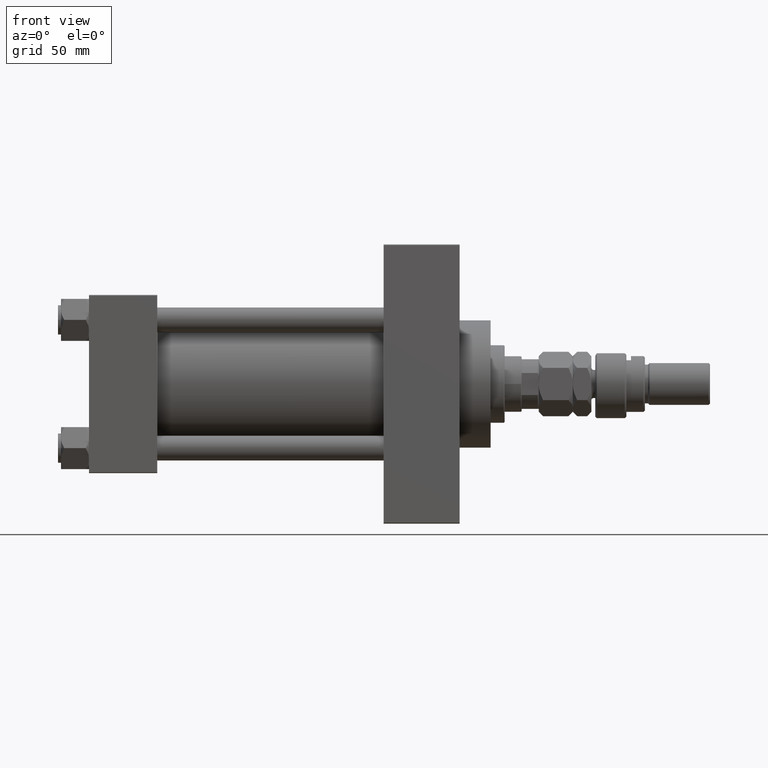
[diagram: clean part render]
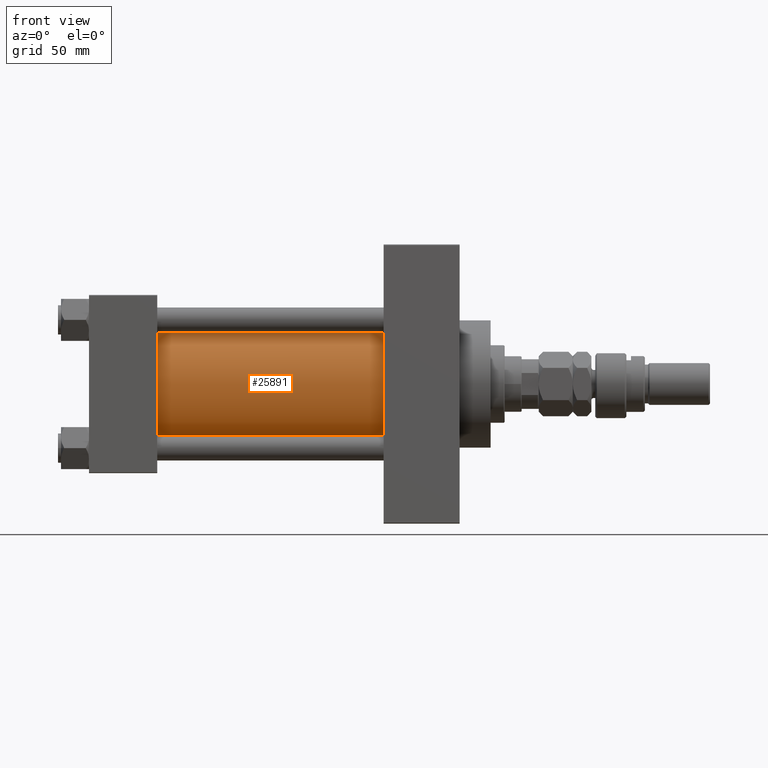
[diagram: same view with one face highlighted and labeled with its STEP entity id]
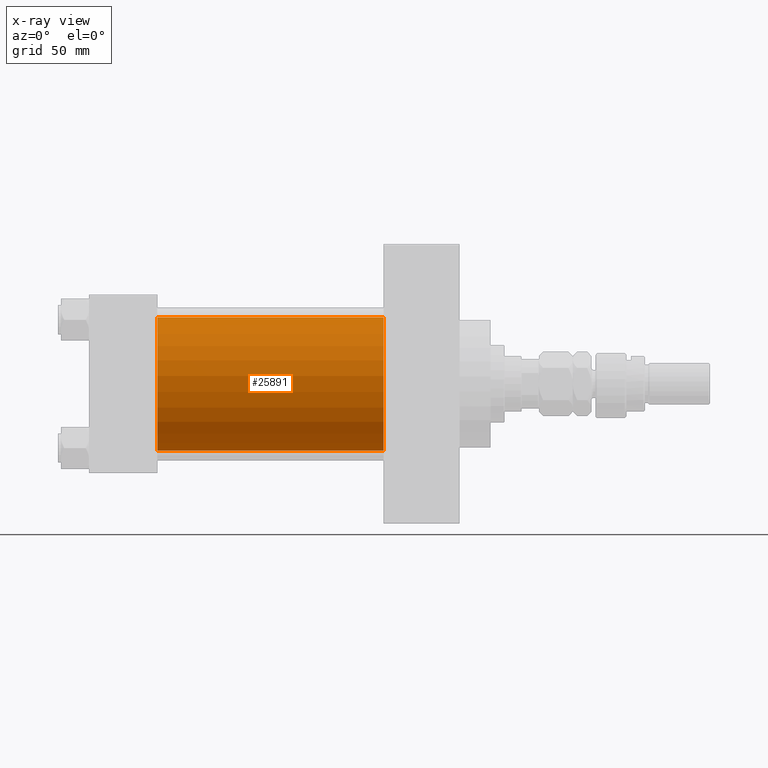
[diagram: x-ray of the same camera — body ghosted, the highlighted face saturated]
A machine part, front view. The second image highlights one B-rep face of the part: STEP entity #25891.
The next image is the same camera in x-ray: the body ghosted, the highlighted face saturated — about 0% of this face is hidden behind the body in this view.
In plain terms, the highlighted cylindrical surface (partial cylindrical patch) has radius 43 mm, axis along (-1, -0, -0).
Its self-contained STEP definition (entity closure, byte-faithful):
#440 = DIRECTION ( 'NONE',  ( 0.000000000000000000, 0.000000000000000000, 1.000000000000000000 ) ) ;
#903 = EDGE_CURVE ( 'NONE', #16494, #42764, #29219, .T. ) ;
#1172 = DIRECTION ( 'NONE',  ( 0.000000000000000000, 0.000000000000000000, -1.000000000000000000 ) ) ;
#1278 = EDGE_LOOP ( 'NONE', ( #36217, #23780, #50452, #5980 ) ) ;
#3443 = CYLINDRICAL_SURFACE ( 'NONE', #37871, 43.00000000000000000 ) ;
#4658 = VECTOR ( 'NONE', #21315, 1000.000000000000000 ) ;
#5041 = CARTESIAN_POINT ( 'NONE',  ( 43.99999999999998579, -2.602085213965210642E-15, 0.000000000000000000 ) ) ;
#5585 = EDGE_CURVE ( 'NONE', #25384, #11556, #49819, .T. ) ;
#5980 = ORIENTED_EDGE ( 'NONE', *, *, #903, .T. ) ;
#8731 = LINE ( 'NONE', #24424, #4658 ) ;
#11556 = VERTEX_POINT ( 'NONE', #37237 ) ;
#16009 = DIRECTION ( 'NONE',  ( 0.000000000000000000, 0.000000000000000000, 1.000000000000000000 ) ) ;
#16494 = VERTEX_POINT ( 'NONE', #28034 ) ;
#19463 = EDGE_CURVE ( 'NONE', #25384, #16494, #30318, .T. ) ;
#19703 = CARTESIAN_POINT ( 'NONE',  ( 190.0000000000000000, -2.602085213965210642E-15, 0.000000000000000000 ) ) ;
#21315 = DIRECTION ( 'NONE',  ( -1.000000000000000000, -0.000000000000000000, -0.000000000000000000 ) ) ;
#23780 = ORIENTED_EDGE ( 'NONE', *, *, #5585, .F. ) ;
#24424 = CARTESIAN_POINT ( 'NONE',  ( 190.0000000000000000, 2.663896022368408223E-15, -43.00000000000000000 ) ) ;
#25384 = VERTEX_POINT ( 'NONE', #42315 ) ;
#25891 = ADVANCED_FACE ( 'NONE', ( #35288 ), #3443, .T. ) ;
#26450 = CARTESIAN_POINT ( 'NONE',  ( 190.0000000000000000, -2.602085213965210642E-15, 43.00000000000000000 ) ) ;
#27738 = AXIS2_PLACEMENT_3D ( 'NONE', #19703, #28663, #1172 ) ;
#28034 = CARTESIAN_POINT ( 'NONE',  ( 43.99999999999998579, -2.602085213965210642E-15, 43.00000000000000000 ) ) ;
#28663 = DIRECTION ( 'NONE',  ( 1.000000000000000000, 0.000000000000000000, 0.000000000000000000 ) ) ;
#29219 = CIRCLE ( 'NONE', #46432, 43.00000000000000000 ) ;
#30318 = LINE ( 'NONE', #26450, #49490 ) ;
#31404 = CARTESIAN_POINT ( 'NONE',  ( 43.99999999999998579, 2.663896022368408223E-15, -43.00000000000000000 ) ) ;
#35288 = FACE_OUTER_BOUND ( 'NONE', #1278, .T. ) ;
#36217 = ORIENTED_EDGE ( 'NONE', *, *, #39796, .F. ) ;
#37237 = CARTESIAN_POINT ( 'NONE',  ( 190.0000000000000000, 2.663896022368408223E-15, -43.00000000000000000 ) ) ;
#37871 = AXIS2_PLACEMENT_3D ( 'NONE', #38374, #39128, #16009 ) ;
#38374 = CARTESIAN_POINT ( 'NONE',  ( 190.0000000000000000, -2.602085213965210642E-15, 0.000000000000000000 ) ) ;
#39128 = DIRECTION ( 'NONE',  ( -1.000000000000000000, -0.000000000000000000, -0.000000000000000000 ) ) ;
#39470 = DIRECTION ( 'NONE',  ( 1.000000000000000000, -0.000000000000000000, 0.000000000000000000 ) ) ;
#39796 = EDGE_CURVE ( 'NONE', #11556, #42764, #8731, .T. ) ;
#42315 = CARTESIAN_POINT ( 'NONE',  ( 190.0000000000000000, -2.602085213965210642E-15, 43.00000000000000000 ) ) ;
#42336 = DIRECTION ( 'NONE',  ( -1.000000000000000000, -0.000000000000000000, -0.000000000000000000 ) ) ;
#42764 = VERTEX_POINT ( 'NONE', #31404 ) ;
#46432 = AXIS2_PLACEMENT_3D ( 'NONE', #5041, #39470, #440 ) ;
#49490 = VECTOR ( 'NONE', #42336, 1000.000000000000000 ) ;
#49819 = CIRCLE ( 'NONE', #27738, 43.00000000000000000 ) ;
#50452 = ORIENTED_EDGE ( 'NONE', *, *, #19463, .T. ) ;